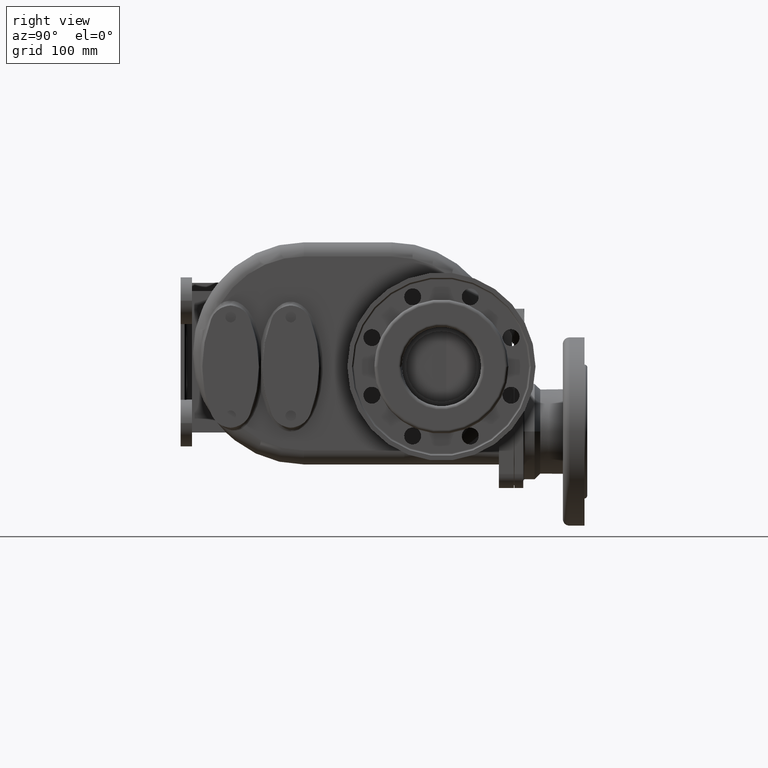
[diagram: clean part render]
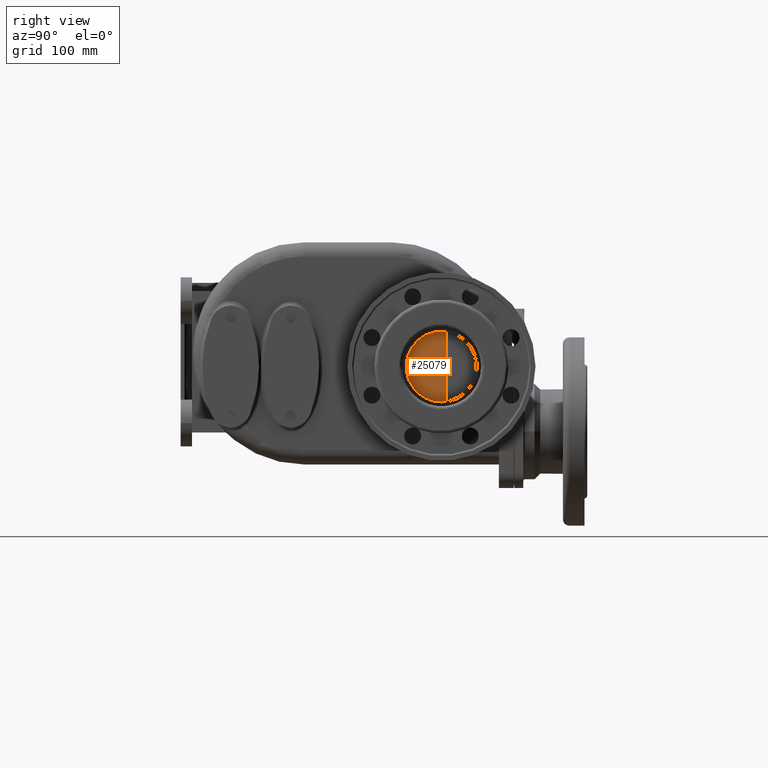
[diagram: same view with one face highlighted and labeled with its STEP entity id]
A machine part, right view. The second image highlights one B-rep face of the part: STEP entity #25079.
In plain terms, the highlighted planar face has unit normal (1, 0, 0).
Its self-contained STEP definition (entity closure, byte-faithful):
#4656=CARTESIAN_POINT('',(1.425E2,2.65E2,-1.4E1));
#4657=DIRECTION('',(1.E0,0.E0,0.E0));
#4658=DIRECTION('',(0.E0,0.E0,-1.E0));
#4659=AXIS2_PLACEMENT_3D('',#4656,#4657,#4658);
#4661=CARTESIAN_POINT('',(1.425E2,2.65E2,-1.4E1));
#4662=DIRECTION('',(1.E0,0.E0,0.E0));
#4663=DIRECTION('',(0.E0,0.E0,1.E0));
#4664=AXIS2_PLACEMENT_3D('',#4661,#4662,#4663);
#4666=CARTESIAN_POINT('',(1.425E2,2.65E2,-1.4E1));
#4667=DIRECTION('',(1.E0,0.E0,0.E0));
#4668=DIRECTION('',(0.E0,1.367443808046E-1,9.906063669886E-1));
#4669=AXIS2_PLACEMENT_3D('',#4666,#4667,#4668);
#4671=DIRECTION('',(0.E0,0.E0,1.E0));
#4672=VECTOR('',#4671,7.429547752415E1);
#4673=CARTESIAN_POINT('',(1.425E2,2.701279142802E2,-5.114773876207E1));
#4674=LINE('',#4673,#4672);
#17478=CARTESIAN_POINT('',(1.425E2,2.65E2,-5.15E1));
#17479=CARTESIAN_POINT('',(1.425E2,2.701279142802E2,-5.114773876207E1));
#17480=VERTEX_POINT('',#17478);
#17481=VERTEX_POINT('',#17479);
#17482=CARTESIAN_POINT('',(1.425E2,2.701279142802E2,2.314773876207E1));
#17483=CARTESIAN_POINT('',(1.425E2,2.65E2,2.35E1));
#17484=VERTEX_POINT('',#17482);
#17485=VERTEX_POINT('',#17483);
#25066=CARTESIAN_POINT('',(1.425E2,1.2E2,0.E0));
#25067=DIRECTION('',(1.E0,0.E0,0.E0));
#25068=DIRECTION('',(0.E0,0.E0,-1.E0));
#25069=AXIS2_PLACEMENT_3D('',#25066,#25067,#25068);
#25070=PLANE('',#25069);
#25071=ORIENTED_EDGE('',*,*,#25052,.F.);
#25073=ORIENTED_EDGE('',*,*,#25072,.F.);
#25074=ORIENTED_EDGE('',*,*,#25056,.F.);
#25076=ORIENTED_EDGE('',*,*,#25075,.F.);
#25077=EDGE_LOOP('',(#25071,#25073,#25074,#25076));
#25078=FACE_OUTER_BOUND('',#25077,.F.);
#25079=ADVANCED_FACE('',(#25078),#25070,.T.);
#4660=CIRCLE('',#4659,3.75E1);
#4665=CIRCLE('',#4664,3.75E1);
#4670=CIRCLE('',#4669,3.75E1);
#25052=EDGE_CURVE('',#17480,#17481,#4660,.T.);
#25056=EDGE_CURVE('',#17484,#17485,#4670,.T.);
#25072=EDGE_CURVE('',#17485,#17480,#4665,.T.);
#25075=EDGE_CURVE('',#17481,#17484,#4674,.T.);